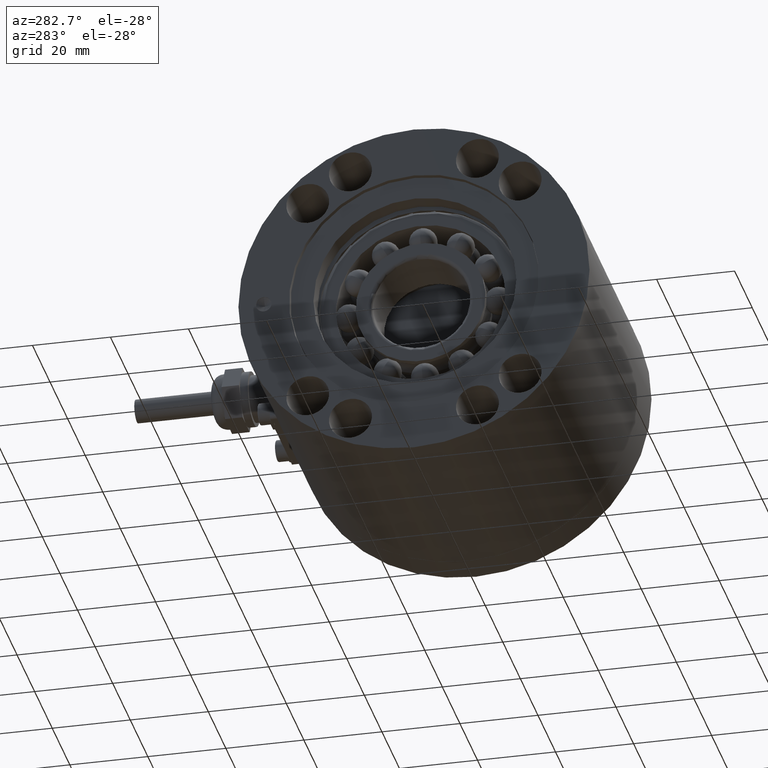
[diagram: clean part render]
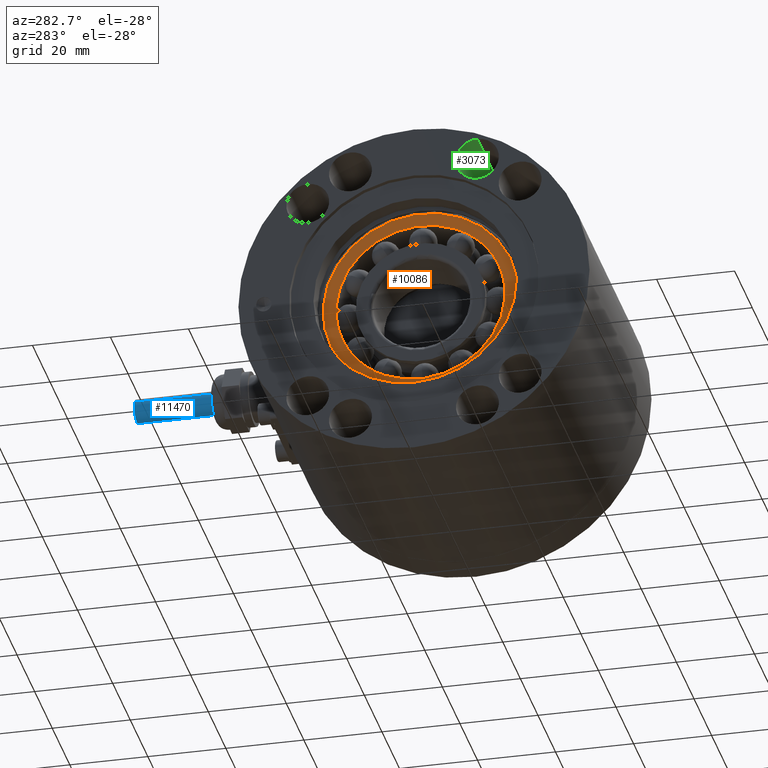
[diagram: same view with three faces highlighted in distinct colors, each labeled with its STEP entity id]
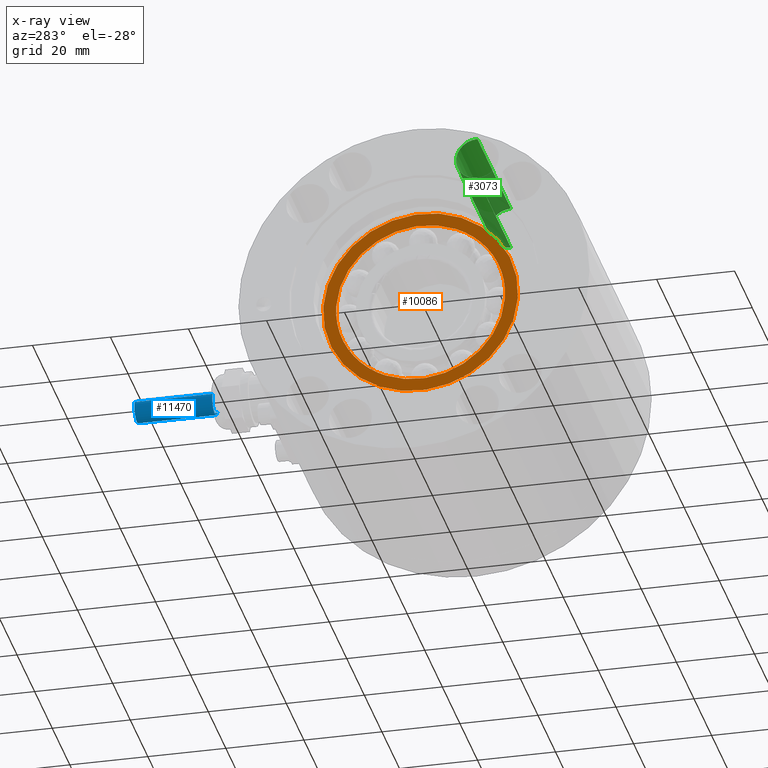
[diagram: x-ray of the same camera — body ghosted, the three highlighted faces saturated]
A machine part, auxiliary view with three faces highlighted in distinct colors.
The next image is the same camera in x-ray (body ghosted, the three faces saturated) — at least one of them is partly hidden behind the body in this view.
Their STEP definitions:

[orange] entity #10086 — the highlighted planar face has unit normal (-1, 0, 0).
#534 = DIRECTION ( 'NONE',  ( 0.000000000000000000, 6.123031769111888756E-17, 1.000000000000000000 ) ) ;
#852 = CARTESIAN_POINT ( 'NONE',  ( 0.000000000000000000, 0.000000000000000000, 0.000000000000000000 ) ) ;
#1698 = CARTESIAN_POINT ( 'NONE',  ( 0.000000000000000000, 0.000000000000000000, 0.000000000000000000 ) ) ;
#2062 = DIRECTION ( 'NONE',  ( 1.000000000000000000, 0.000000000000000000, 0.000000000000000000 ) ) ;
#2274 = FACE_OUTER_BOUND ( 'NONE', #6119, .T. ) ;
#2454 = DIRECTION ( 'NONE',  ( 1.000000000000000000, 0.000000000000000000, 0.000000000000000000 ) ) ;
#2874 = EDGE_CURVE ( 'NONE', #8755, #9123, #12216, .T. ) ;
#3272 = AXIS2_PLACEMENT_3D ( 'NONE', #3656, #2454, #7177 ) ;
#3656 = CARTESIAN_POINT ( 'NONE',  ( 0.000000000000000000, 0.000000000000000000, 0.000000000000000000 ) ) ;
#4303 = CIRCLE ( 'NONE', #13558, 25.00000000000000000 ) ;
#4735 = VERTEX_POINT ( 'NONE', #5412 ) ;
#4899 = CARTESIAN_POINT ( 'NONE',  ( 0.000000000000000000, 25.00000000000000000, -4.592273826833909985E-15 ) ) ;
#5039 = ORIENTED_EDGE ( 'NONE', *, *, #2874, .T. ) ;
#5182 = AXIS2_PLACEMENT_3D ( 'NONE', #14407, #8972, #12389 ) ;
#5412 = CARTESIAN_POINT ( 'NONE',  ( 0.000000000000000000, -25.00000000000000000, 4.592273826833909985E-15 ) ) ;
#5809 = CIRCLE ( 'NONE', #14390, 21.65288135168160011 ) ;
#5814 = AXIS2_PLACEMENT_3D ( 'NONE', #852, #2062, #6543 ) ;
#5983 = EDGE_CURVE ( 'NONE', #7009, #4735, #9986, .T. ) ;
#6119 = EDGE_LOOP ( 'NONE', ( #13609, #8180 ) ) ;
#6543 = DIRECTION ( 'NONE',  ( 0.000000000000000000, 6.123031769111888756E-17, 1.000000000000000000 ) ) ;
#7009 = VERTEX_POINT ( 'NONE', #4899 ) ;
#7177 = DIRECTION ( 'NONE',  ( 0.000000000000000000, 6.123031769111888756E-17, 1.000000000000000000 ) ) ;
#7288 = DIRECTION ( 'NONE',  ( 1.000000000000000000, 0.000000000000000000, 0.000000000000000000 ) ) ;
#7457 = EDGE_CURVE ( 'NONE', #4735, #7009, #4303, .T. ) ;
#8171 = CARTESIAN_POINT ( 'NONE',  ( 0.000000000000000000, 21.65288135168160011, -4.073580387434929673E-16 ) ) ;
#8180 = ORIENTED_EDGE ( 'NONE', *, *, #5983, .F. ) ;
#8755 = VERTEX_POINT ( 'NONE', #8798 ) ;
#8798 = CARTESIAN_POINT ( 'NONE',  ( 0.000000000000000000, -21.65288135168160011, 2.244267569439639879E-15 ) ) ;
#8972 = DIRECTION ( 'NONE',  ( -1.000000000000000000, 0.000000000000000000, 0.000000000000000000 ) ) ;
#9020 = DIRECTION ( 'NONE',  ( 1.000000000000000000, 0.000000000000000000, 0.000000000000000000 ) ) ;
#9123 = VERTEX_POINT ( 'NONE', #8171 ) ;
#9986 = CIRCLE ( 'NONE', #5814, 25.00000000000000000 ) ;
#10086 = ADVANCED_FACE ( 'NONE', ( #2274, #11627 ), #11233, .T. ) ;
#10230 = CARTESIAN_POINT ( 'NONE',  ( 0.000000000000000000, 0.000000000000000000, 0.000000000000000000 ) ) ;
#10744 = EDGE_LOOP ( 'NONE', ( #12643, #5039 ) ) ;
#11233 = PLANE ( 'NONE',  #5182 ) ;
#11627 = FACE_BOUND ( 'NONE', #10744, .T. ) ;
#12216 = CIRCLE ( 'NONE', #3272, 21.65288135168160011 ) ;
#12389 = DIRECTION ( 'NONE',  ( 0.000000000000000000, 0.000000000000000000, 1.000000000000000000 ) ) ;
#12643 = ORIENTED_EDGE ( 'NONE', *, *, #13361, .T. ) ;
#13361 = EDGE_CURVE ( 'NONE', #9123, #8755, #5809, .T. ) ;
#13558 = AXIS2_PLACEMENT_3D ( 'NONE', #10230, #9020, #13565 ) ;
#13565 = DIRECTION ( 'NONE',  ( 0.000000000000000000, 6.123031769111888756E-17, 1.000000000000000000 ) ) ;
#13609 = ORIENTED_EDGE ( 'NONE', *, *, #7457, .F. ) ;
#14390 = AXIS2_PLACEMENT_3D ( 'NONE', #1698, #7288, #534 ) ;
#14407 = CARTESIAN_POINT ( 'NONE',  ( 0.000000000000000000, 1.428285373184769947E-15, 23.32644067584080005 ) ) ;

[blue] entity #11470 — the highlighted cylindrical surface (edge-blend (fillet) strip) has radius 3 mm, axis along (0, -1, 0).
#275 = VERTEX_POINT ( 'NONE', #3226 ) ;
#513 = EDGE_CURVE ( 'NONE', #8865, #12600, #12642, .T. ) ;
#1015 = CARTESIAN_POINT ( 'NONE',  ( 10.00000000000000000, 0.000000000000000000, 0.000000000000000000 ) ) ;
#1170 = CARTESIAN_POINT ( 'NONE',  ( 10.00000000000000000, 0.000000000000000000, 3.000000000000000444 ) ) ;
#1464 = EDGE_CURVE ( 'NONE', #12600, #8245, #3949, .T. ) ;
#2090 = DIRECTION ( 'NONE',  ( -1.000000000000000000, -0.000000000000000000, -0.000000000000000000 ) ) ;
#2099 = ORIENTED_EDGE ( 'NONE', *, *, #13152, .T. ) ;
#2220 = CARTESIAN_POINT ( 'NONE',  ( 10.00000000000000000, 3.673940397442060361E-16, -3.000000000000000444 ) ) ;
#3226 = CARTESIAN_POINT ( 'NONE',  ( -10.00000000000000000, 3.673940397442060361E-16, -3.000000000000000444 ) ) ;
#3332 = DIRECTION ( 'NONE',  ( 1.000000000000000000, 0.000000000000000000, 0.000000000000000000 ) ) ;
#3832 = LINE ( 'NONE', #2220, #7439 ) ;
#3862 = CIRCLE ( 'NONE', #5523, 3.000000000000000444 ) ;
#3864 = ORIENTED_EDGE ( 'NONE', *, *, #1464, .F. ) ;
#3949 = LINE ( 'NONE', #5815, #8099 ) ;
#4622 = DIRECTION ( 'NONE',  ( -1.000000000000000000, -0.000000000000000000, -0.000000000000000000 ) ) ;
#5224 = EDGE_CURVE ( 'NONE', #275, #8245, #3862, .T. ) ;
#5523 = AXIS2_PLACEMENT_3D ( 'NONE', #9541, #7158, #7209 ) ;
#5815 = CARTESIAN_POINT ( 'NONE',  ( 10.00000000000000000, 0.000000000000000000, 3.000000000000000444 ) ) ;
#5835 = CARTESIAN_POINT ( 'NONE',  ( 10.00000000000000000, 0.000000000000000000, 0.000000000000000000 ) ) ;
#6290 = ORIENTED_EDGE ( 'NONE', *, *, #5224, .T. ) ;
#6694 = CARTESIAN_POINT ( 'NONE',  ( -10.00000000000000000, 0.000000000000000000, 3.000000000000000444 ) ) ;
#7158 = DIRECTION ( 'NONE',  ( 1.000000000000000000, 0.000000000000000000, 0.000000000000000000 ) ) ;
#7209 = DIRECTION ( 'NONE',  ( 0.000000000000000000, 0.000000000000000000, -1.000000000000000000 ) ) ;
#7439 = VECTOR ( 'NONE', #4622, 1000.000000000000000 ) ;
#8099 = VECTOR ( 'NONE', #2090, 1000.000000000000000 ) ;
#8245 = VERTEX_POINT ( 'NONE', #6694 ) ;
#8865 = VERTEX_POINT ( 'NONE', #11014 ) ;
#8968 = AXIS2_PLACEMENT_3D ( 'NONE', #5835, #13801, #9199 ) ;
#9199 = DIRECTION ( 'NONE',  ( 0.000000000000000000, 0.000000000000000000, 1.000000000000000000 ) ) ;
#9541 = CARTESIAN_POINT ( 'NONE',  ( -10.00000000000000000, 0.000000000000000000, 0.000000000000000000 ) ) ;
#10167 = CYLINDRICAL_SURFACE ( 'NONE', #8968, 3.000000000000000444 ) ;
#10171 = ORIENTED_EDGE ( 'NONE', *, *, #513, .F. ) ;
#10291 = AXIS2_PLACEMENT_3D ( 'NONE', #1015, #3332, #11378 ) ;
#11014 = CARTESIAN_POINT ( 'NONE',  ( 10.00000000000000000, 3.673940397442060361E-16, -3.000000000000000444 ) ) ;
#11378 = DIRECTION ( 'NONE',  ( 0.000000000000000000, 0.000000000000000000, -1.000000000000000000 ) ) ;
#11470 = ADVANCED_FACE ( 'NONE', ( #13409 ), #10167, .T. ) ;
#12600 = VERTEX_POINT ( 'NONE', #1170 ) ;
#12642 = CIRCLE ( 'NONE', #10291, 3.000000000000000444 ) ;
#13152 = EDGE_CURVE ( 'NONE', #8865, #275, #3832, .T. ) ;
#13409 = FACE_OUTER_BOUND ( 'NONE', #14445, .T. ) ;
#13801 = DIRECTION ( 'NONE',  ( -1.000000000000000000, -0.000000000000000000, -0.000000000000000000 ) ) ;
#14445 = EDGE_LOOP ( 'NONE', ( #10171, #2099, #6290, #3864 ) ) ;

[green] entity #3073 — the highlighted cylindrical surface (edge-blend (fillet) strip) has radius 5.5 mm, axis along (-1, 0, 0).
#47 = EDGE_CURVE ( 'NONE', #13073, #7621, #8131, .T. ) ;
#198 = ORIENTED_EDGE ( 'NONE', *, *, #47, .T. ) ;
#318 = DIRECTION ( 'NONE',  ( 1.000000000000000000, -0.000000000000000000, -0.000000000000000000 ) ) ;
#495 = CYLINDRICAL_SURFACE ( 'NONE', #3833, 5.499999999999991118 ) ;
#688 = ORIENTED_EDGE ( 'NONE', *, *, #9297, .F. ) ;
#1456 = VERTEX_POINT ( 'NONE', #10192 ) ;
#1795 = CARTESIAN_POINT ( 'NONE',  ( 62.00000000000000000, -16.27080307701696782, -34.89284980091102284 ) ) ;
#1850 = DIRECTION ( 'NONE',  ( 0.000000000000000000, 0.000000000000000000, -1.000000000000000000 ) ) ;
#2473 = EDGE_CURVE ( 'NONE', #1456, #13073, #11152, .T. ) ;
#2696 = DIRECTION ( 'NONE',  ( 1.000000000000000000, -0.000000000000000000, -0.000000000000000000 ) ) ;
#3073 = ADVANCED_FACE ( 'NONE', ( #10420 ), #495, .F. ) ;
#3800 = DIRECTION ( 'NONE',  ( 0.000000000000000000, 0.000000000000000000, -1.000000000000000000 ) ) ;
#3833 = AXIS2_PLACEMENT_3D ( 'NONE', #12968, #318, #3800 ) ;
#4086 = DIRECTION ( 'NONE',  ( 0.000000000000000000, 0.000000000000000000, -1.000000000000000000 ) ) ;
#5303 = DIRECTION ( 'NONE',  ( 1.000000000000000000, -0.000000000000000000, -0.000000000000000000 ) ) ;
#5435 = CARTESIAN_POINT ( 'NONE',  ( 62.00000000000000000, -16.27080307701696782, -40.39284980091101573 ) ) ;
#5560 = VECTOR ( 'NONE', #12025, 1000.000000000000000 ) ;
#6332 = ORIENTED_EDGE ( 'NONE', *, *, #10480, .F. ) ;
#6351 = CARTESIAN_POINT ( 'NONE',  ( 24.00000000000000000, -16.27080307701696782, -29.39284980091102994 ) ) ;
#6422 = AXIS2_PLACEMENT_3D ( 'NONE', #1795, #6432, #1850 ) ;
#6432 = DIRECTION ( 'NONE',  ( 1.000000000000000000, -0.000000000000000000, -0.000000000000000000 ) ) ;
#6435 = LINE ( 'NONE', #12961, #8044 ) ;
#7621 = VERTEX_POINT ( 'NONE', #7765 ) ;
#7765 = CARTESIAN_POINT ( 'NONE',  ( 62.00000000000000000, -16.27080307701696782, -29.39284980091102639 ) ) ;
#8044 = VECTOR ( 'NONE', #2696, 1000.000000000000000 ) ;
#8131 = CIRCLE ( 'NONE', #6422, 5.499999999999991118 ) ;
#8651 = CARTESIAN_POINT ( 'NONE',  ( 62.00000000000000000, -16.27080307701696782, -40.39284980091101573 ) ) ;
#9297 = EDGE_CURVE ( 'NONE', #12889, #7621, #6435, .T. ) ;
#10192 = CARTESIAN_POINT ( 'NONE',  ( 24.00000000000000000, -16.27080307701696782, -40.39284980091101573 ) ) ;
#10420 = FACE_OUTER_BOUND ( 'NONE', #11096, .T. ) ;
#10480 = EDGE_CURVE ( 'NONE', #1456, #12889, #12878, .T. ) ;
#10599 = AXIS2_PLACEMENT_3D ( 'NONE', #12251, #5303, #4086 ) ;
#11096 = EDGE_LOOP ( 'NONE', ( #688, #6332, #12061, #198 ) ) ;
#11152 = LINE ( 'NONE', #8651, #5560 ) ;
#12025 = DIRECTION ( 'NONE',  ( 1.000000000000000000, -0.000000000000000000, -0.000000000000000000 ) ) ;
#12061 = ORIENTED_EDGE ( 'NONE', *, *, #2473, .T. ) ;
#12251 = CARTESIAN_POINT ( 'NONE',  ( 24.00000000000000000, -16.27080307701696782, -34.89284980091102284 ) ) ;
#12878 = CIRCLE ( 'NONE', #10599, 5.499999999999991118 ) ;
#12889 = VERTEX_POINT ( 'NONE', #6351 ) ;
#12961 = CARTESIAN_POINT ( 'NONE',  ( 62.00000000000000000, -16.27080307701696782, -29.39284980091102994 ) ) ;
#12968 = CARTESIAN_POINT ( 'NONE',  ( 62.00000000000000000, -16.27080307701696782, -34.89284980091102284 ) ) ;
#13073 = VERTEX_POINT ( 'NONE', #5435 ) ;